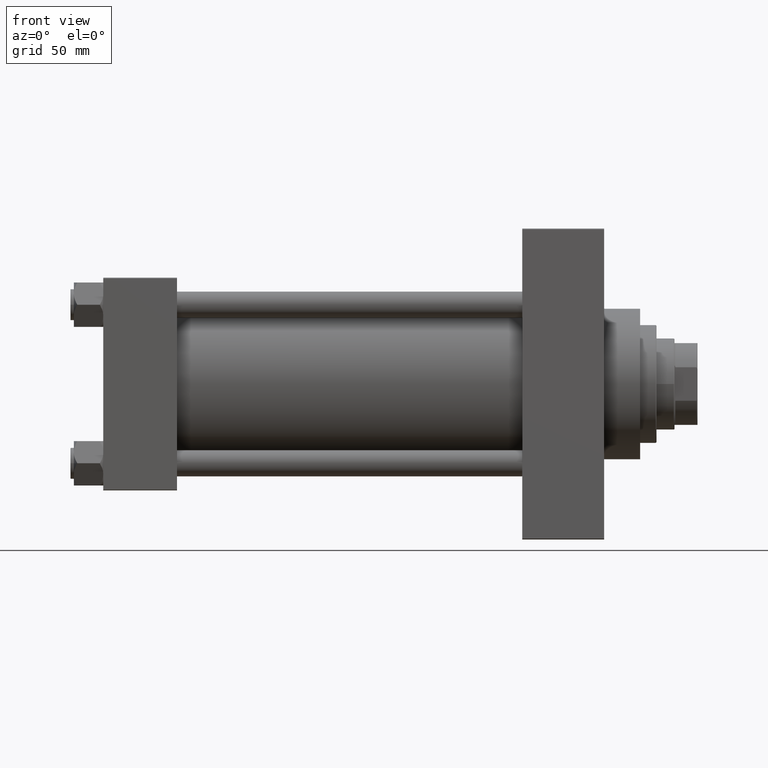
[diagram: clean part render]
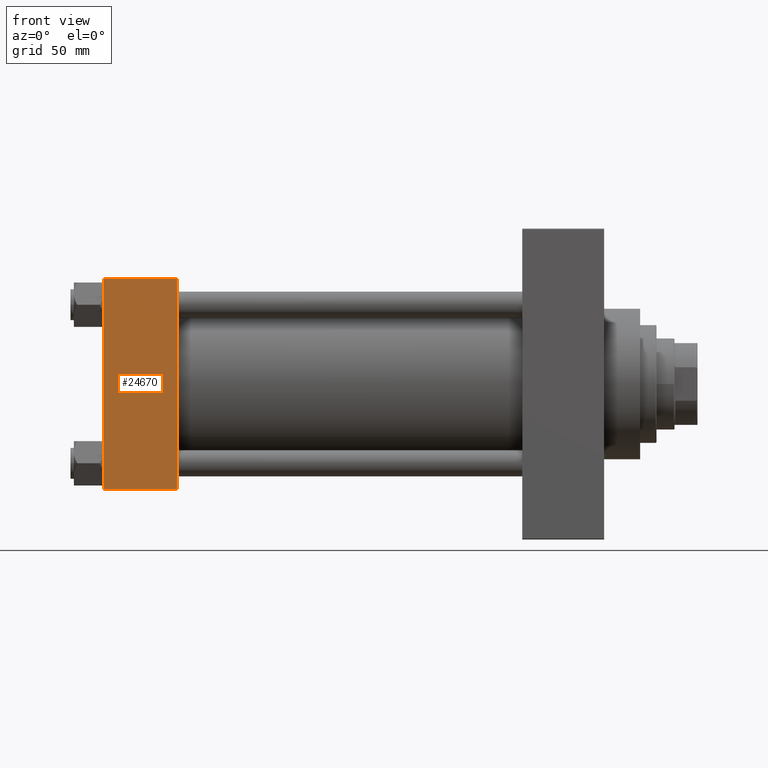
[diagram: same view with one face highlighted and labeled with its STEP entity id]
A machine part, front view. The second image highlights one B-rep face of the part: STEP entity #24670.
In plain terms, the highlighted planar face has unit normal (0, 1, 0).
Its self-contained STEP definition (entity closure, byte-faithful):
#17 = DIRECTION ( 'NONE',  ( -0.000000000000000000, 1.000000000000000000, 0.000000000000000000 ) ) ;
#575 = CARTESIAN_POINT ( 'NONE',  ( 45.00000000000000000, -65.00000000000000000, -64.49999999999991473 ) ) ;
#882 = ORIENTED_EDGE ( 'NONE', *, *, #41285, .T. ) ;
#1379 = LINE ( 'NONE', #46278, #35645 ) ;
#3744 = LINE ( 'NONE', #45248, #23751 ) ;
#4445 = DIRECTION ( 'NONE',  ( 0.000000000000000000, 0.000000000000000000, -1.000000000000000000 ) ) ;
#4494 = VERTEX_POINT ( 'NONE', #34251 ) ;
#9292 = CARTESIAN_POINT ( 'NONE',  ( 0.000000000000000000, -65.00000000000000000, -64.49999999999991473 ) ) ;
#10555 = CARTESIAN_POINT ( 'NONE',  ( 0.000000000000000000, -65.00000000000000000, 65.00000000000000000 ) ) ;
#11938 = EDGE_CURVE ( 'NONE', #4494, #40143, #1379, .T. ) ;
#13405 = ORIENTED_EDGE ( 'NONE', *, *, #23472, .F. ) ;
#15585 = ORIENTED_EDGE ( 'NONE', *, *, #41287, .T. ) ;
#21523 = CARTESIAN_POINT ( 'NONE',  ( 45.00000000000000000, -65.00000000000000000, 65.00000000000000000 ) ) ;
#23472 = EDGE_CURVE ( 'NONE', #4494, #28209, #3744, .T. ) ;
#23751 = VECTOR ( 'NONE', #4445, 1000.000000000000000 ) ;
#24670 = ADVANCED_FACE ( 'NONE', ( #44213 ), #29257, .F. ) ;
#25298 = LINE ( 'NONE', #575, #27747 ) ;
#26140 = AXIS2_PLACEMENT_3D ( 'NONE', #21523, #17, #47126 ) ;
#26430 = DIRECTION ( 'NONE',  ( 1.000000000000000000, 0.000000000000000000, 0.000000000000000000 ) ) ;
#26878 = DIRECTION ( 'NONE',  ( 0.000000000000000000, 0.000000000000000000, -1.000000000000000000 ) ) ;
#27530 = CARTESIAN_POINT ( 'NONE',  ( 45.00000000000000000, -65.00000000000000000, -64.49999999999991473 ) ) ;
#27747 = VECTOR ( 'NONE', #26430, 1000.000000000000000 ) ;
#28209 = VERTEX_POINT ( 'NONE', #27530 ) ;
#29257 = PLANE ( 'NONE',  #26140 ) ;
#33520 = VERTEX_POINT ( 'NONE', #9292 ) ;
#34251 = CARTESIAN_POINT ( 'NONE',  ( 45.00000000000000000, -65.00000000000000000, 64.50000000000000000 ) ) ;
#34948 = DIRECTION ( 'NONE',  ( -1.000000000000000000, 0.000000000000000000, 0.000000000000000000 ) ) ;
#35645 = VECTOR ( 'NONE', #34948, 1000.000000000000000 ) ;
#37027 = VECTOR ( 'NONE', #26878, 1000.000000000000000 ) ;
#37293 = LINE ( 'NONE', #10555, #37027 ) ;
#38983 = CARTESIAN_POINT ( 'NONE',  ( 0.000000000000000000, -65.00000000000000000, 64.50000000000000000 ) ) ;
#40143 = VERTEX_POINT ( 'NONE', #38983 ) ;
#41212 = ORIENTED_EDGE ( 'NONE', *, *, #11938, .T. ) ;
#41285 = EDGE_CURVE ( 'NONE', #40143, #33520, #37293, .T. ) ;
#41287 = EDGE_CURVE ( 'NONE', #33520, #28209, #25298, .T. ) ;
#44213 = FACE_OUTER_BOUND ( 'NONE', #44474, .T. ) ;
#44474 = EDGE_LOOP ( 'NONE', ( #882, #15585, #13405, #41212 ) ) ;
#45248 = CARTESIAN_POINT ( 'NONE',  ( 45.00000000000000000, -65.00000000000000000, 65.00000000000000000 ) ) ;
#46278 = CARTESIAN_POINT ( 'NONE',  ( 45.00000000000000000, -65.00000000000000000, 64.50000000000000000 ) ) ;
#47126 = DIRECTION ( 'NONE',  ( 0.000000000000000000, -0.000000000000000000, 1.000000000000000000 ) ) ;